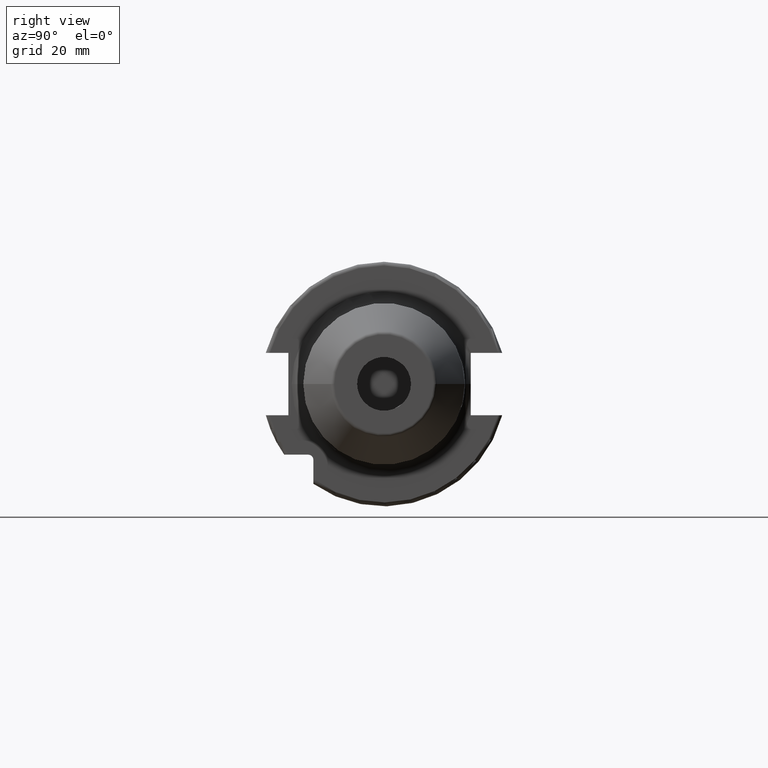
[diagram: clean part render]
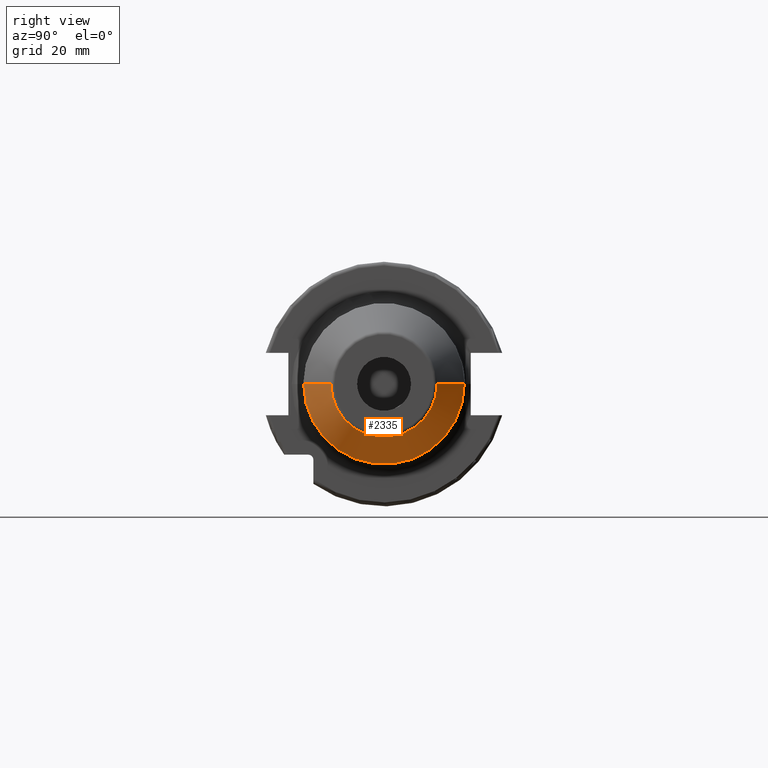
[diagram: same view with one face highlighted and labeled with its STEP entity id]
A machine part, right view. The second image highlights one B-rep face of the part: STEP entity #2335.
In plain terms, the highlighted conical surface has half-angle 30 deg.
Its self-contained STEP definition (entity closure, byte-faithful):
#624=CARTESIAN_POINT('',(8.723205080757E1,0.E0,0.E0));
#625=DIRECTION('',(-1.E0,0.E0,0.E0));
#626=DIRECTION('',(0.E0,1.E0,0.E0));
#627=AXIS2_PLACEMENT_3D('',#624,#625,#626);
#629=DIRECTION('',(-8.660254037844E-1,-5.E-1,-1.274919091698E-13));
#630=VECTOR('',#629,1.416580753731E1);
#631=CARTESIAN_POINT('',(9.95E1,-1.378312163513E1,2.508101754437E-12));
#632=LINE('',#631,#630);
#633=CARTESIAN_POINT('',(9.95E1,0.E0,0.E0));
#634=DIRECTION('',(-1.E0,0.E0,0.E0));
#635=DIRECTION('',(0.E0,1.E0,0.E0));
#636=AXIS2_PLACEMENT_3D('',#633,#634,#635);
#638=DIRECTION('',(-8.660254037844E-1,5.E-1,1.273617350162E-13));
#639=VECTOR('',#638,1.416580753731E1);
#640=CARTESIAN_POINT('',(9.95E1,1.378312163513E1,-2.508527210279E-12));
#641=LINE('',#640,#639);
#1591=CARTESIAN_POINT('',(8.723205080757E1,2.086602540378E1,0.E0));
#1592=CARTESIAN_POINT('',(8.723205080757E1,-2.086602540378E1,0.E0));
#1593=VERTEX_POINT('',#1591);
#1594=VERTEX_POINT('',#1592);
#1595=CARTESIAN_POINT('',(9.95E1,1.378312163513E1,0.E0));
#1596=CARTESIAN_POINT('',(9.95E1,-1.378312163513E1,0.E0));
#1597=VERTEX_POINT('',#1595);
#1598=VERTEX_POINT('',#1596);
#2323=CARTESIAN_POINT('',(9.336602540378E1,0.E0,0.E0));
#2324=DIRECTION('',(-1.E0,0.E0,0.E0));
#2325=DIRECTION('',(0.E0,1.E0,0.E0));
#2326=AXIS2_PLACEMENT_3D('',#2323,#2324,#2325);
#2327=CONICAL_SURFACE('',#2326,1.732457351946E1,3.E1);
#2328=ORIENTED_EDGE('',*,*,#2288,.T.);
#2329=ORIENTED_EDGE('',*,*,#2318,.F.);
#2331=ORIENTED_EDGE('',*,*,#2330,.F.);
#2332=ORIENTED_EDGE('',*,*,#2314,.T.);
#2333=EDGE_LOOP('',(#2328,#2329,#2331,#2332));
#2334=FACE_OUTER_BOUND('',#2333,.F.);
#2335=ADVANCED_FACE('',(#2334),#2327,.T.);
#628=CIRCLE('',#627,2.086602540378E1);
#637=CIRCLE('',#636,1.378312163513E1);
#2288=EDGE_CURVE('',#1593,#1594,#628,.T.);
#2314=EDGE_CURVE('',#1597,#1593,#641,.T.);
#2318=EDGE_CURVE('',#1598,#1594,#632,.T.);
#2330=EDGE_CURVE('',#1597,#1598,#637,.T.);